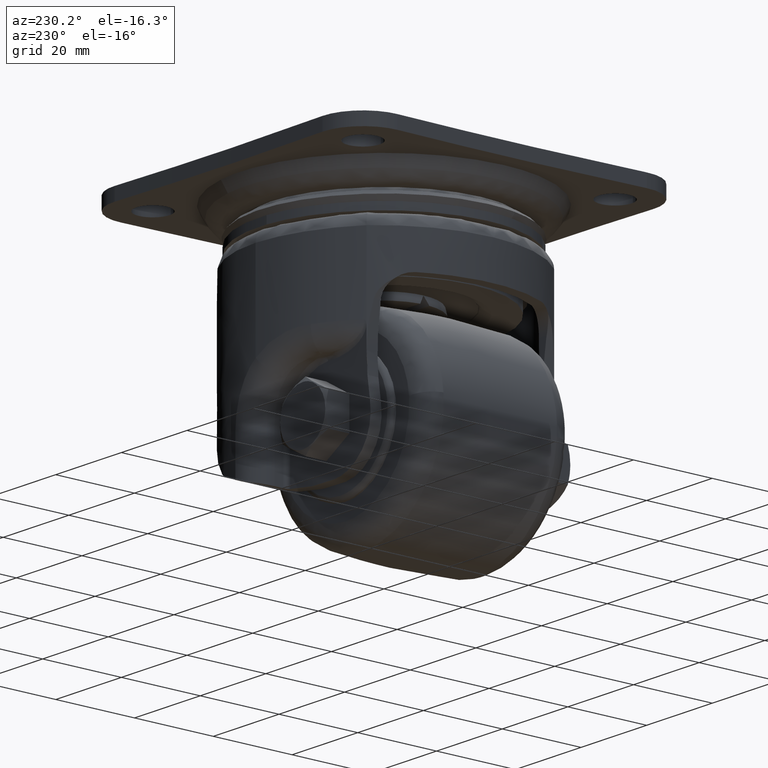
[diagram: clean part render]
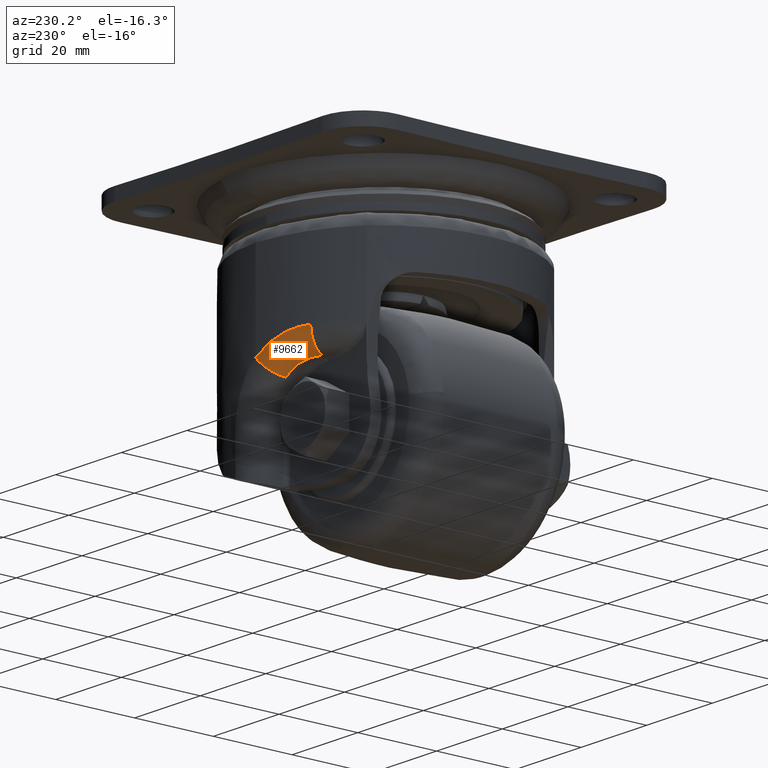
[diagram: same view with one face highlighted and labeled with its STEP entity id]
A machine part, auxiliary view. The second image highlights one B-rep face of the part: STEP entity #9662.
In plain terms, the highlighted face is a freeform B-spline surface patch.
Its self-contained STEP definition (entity closure, byte-faithful):
#4740=CARTESIAN_POINT('',(-11.510754999222820,25.162320823011601,-40.899967999999902));
#4741=VERTEX_POINT('',#4740);
#4747=CARTESIAN_POINT('',(-3.247391428680905,27.599947263824649,-44.012100038500300));
#4748=VERTEX_POINT('',#4747);
#4749=CARTESIAN_POINT('',(-11.510754999222820,25.162320823011601,-40.899967999999902));
#4750=CARTESIAN_POINT('',(-11.339218368456820,25.261583527450561,-40.899830770662042));
#4751=CARTESIAN_POINT('',(-11.166363204090199,25.358212526002539,-40.903221392228403));
#4752=CARTESIAN_POINT('',(-10.817976270696660,25.546109037677720,-40.917407896185502));
#4753=CARTESIAN_POINT('',(-10.642145669944901,25.637522142958719,-40.928232779254493));
#4754=CARTESIAN_POINT('',(-10.113301292970570,25.902218206037990,-40.972167304384790));
#4755=CARTESIAN_POINT('',(-9.758903547376619,26.066036303851551,-41.016654620190941));
#4756=CARTESIAN_POINT('',(-9.046934681531182,26.368663971217650,-41.137861263366979));
#4757=CARTESIAN_POINT('',(-8.689361988619220,26.507472468855010,-41.214575100110451));
#4758=CARTESIAN_POINT('',(-8.151072428142191,26.697065582337121,-41.355710806285927));
#4759=CARTESIAN_POINT('',(-7.971321787161648,26.757159338112341,-41.407106103805262));
#4760=CARTESIAN_POINT('',(-7.611268644234131,26.871155527647929,-41.518994544163583));
#4761=CARTESIAN_POINT('',(-7.430834669434574,26.925094714304311,-41.579535100046662));
#4762=CARTESIAN_POINT('',(-7.070072986657436,27.026639896034560,-41.709974788172453));
#4763=CARTESIAN_POINT('',(-6.890528606158574,27.074030302051138,-41.779584695542383));
#4764=CARTESIAN_POINT('',(-6.622565883223585,27.140213898037750,-41.890723295833183));
#4765=CARTESIAN_POINT('',(-6.533424184193112,27.161467459658891,-41.928913218812752));
#4766=CARTESIAN_POINT('',(-6.356261357689603,27.202224149630080,-42.007266048133182));
#4767=CARTESIAN_POINT('',(-6.268164520414261,27.221746836314608,-42.047458975038012));
#4768=CARTESIAN_POINT('',(-5.830115597525293,27.315220921380821,-42.253492618056782));
#4769=CARTESIAN_POINT('',(-5.487455187697480,27.376767176571200,-42.434513705952007));
#4770=CARTESIAN_POINT('',(-4.818231638031721,27.476719407970592,-42.829024765446469));
#4771=CARTESIAN_POINT('',(-4.491666653730347,27.515119919854509,-43.042513011705751));
#4772=CARTESIAN_POINT('',(-4.014585165738514,27.557675813031640,-43.387682101362827));
#4773=CARTESIAN_POINT('',(-3.857688848990450,27.569352312423341,-43.506900201339967));
#4774=CARTESIAN_POINT('',(-3.548316228420679,27.588064593841761,-43.753830624530437));
#4775=CARTESIAN_POINT('',(-3.396292221988813,27.595069762946348,-43.881193541743642));
#4776=CARTESIAN_POINT('',(-3.247391428680903,27.599947263824649,-44.012100038500300));
#4777=B_SPLINE_CURVE_WITH_KNOTS('',3,(#4749,#4750,#4751,#4752,#4753,#4754,#4755,#4756,#4757,#4758,#4759,#4760,#4761,#4762,#4763,#4764,#4765,#4766,#4767,#4768,#4769,#4770,#4771,#4772,#4773,#4774,#4775,#4776),.UNSPECIFIED.,.F.,.U.,(4,2,2,2,2,2,2,2,2,2,2,2,2,4),(0.0,0.062500000000000,0.125000000000000,0.249999999999998,0.374999999999997,0.437499999999996,0.499999999999996,0.562499999999995,0.593749999999995,0.624999999999995,0.749999999999997,0.874999999999998,0.937499999999999,1.0),.UNSPECIFIED.);
#4778=EDGE_CURVE('',#4741,#4748,#4777,.T.);
#4825=CARTESIAN_POINT('',(-11.511042599236021,25.163855013634951,-40.899967999999902));
#4826=VERTEX_POINT('',#4825);
#4840=CARTESIAN_POINT('',(-11.511042599236051,25.163855013635050,-40.899967999999902));
#4841=CARTESIAN_POINT('',(-11.510754999222851,25.162320823012060,-40.899967999999902));
#4842=QUASI_UNIFORM_CURVE('',1,(#4840,#4841),.UNSPECIFIED.,.F.,.U.);
#4843=EDGE_CURVE('',#4826,#4741,#4842,.T.);
#9400=CARTESIAN_POINT('',(-13.422198919354100,29.784188848539600,-35.899967999999987));
#9401=VERTEX_POINT('',#9400);
#9415=CARTESIAN_POINT('',(-13.422198919354109,29.784188848539610,-35.899967999999987));
#9416=CARTESIAN_POINT('',(-13.422041875557090,29.783844143030340,-35.946716645684617));
#9417=CARTESIAN_POINT('',(-13.421727787797250,29.783154731647880,-36.040213986408631));
#9418=CARTESIAN_POINT('',(-13.419351678648059,29.777512197902489,-36.180349739169401));
#9419=CARTESIAN_POINT('',(-13.415583016583080,29.768500702579161,-36.320265061759379));
#9420=CARTESIAN_POINT('',(-13.410287982131440,29.755796387906958,-36.459849881214353));
#9421=CARTESIAN_POINT('',(-13.403507411630740,29.739497900354461,-36.598994384163881));
#9422=CARTESIAN_POINT('',(-13.395236833623031,29.719594282624389,-36.737589102447572));
#9423=CARTESIAN_POINT('',(-13.385485402341670,29.696107538182709,-36.875525002060527));
#9424=CARTESIAN_POINT('',(-13.374260102547730,29.669054421605370,-37.012693558399803));
#9425=CARTESIAN_POINT('',(-13.361569965935111,29.638456638755869,-37.148986880944094));
#9426=CARTESIAN_POINT('',(-13.347424964517970,29.604338168782711,-37.284297651460719));
#9427=CARTESIAN_POINT('',(-13.331836179014090,29.566725675694919,-37.418519755830147));
#9428=CARTESIAN_POINT('',(-13.314816184827460,29.525649426666391,-37.551546324627729));
#9429=CARTESIAN_POINT('',(-13.296377287225690,29.481139080762070,-37.683277441433013));
#9430=CARTESIAN_POINT('',(-13.253394335352009,29.377361129212112,-37.965612837699709));
#9431=CARTESIAN_POINT('',(-13.179704332584381,29.199374565983451,-38.358553663767871));
#9432=CARTESIAN_POINT('',(-13.068111925539890,28.929728793680098,-38.811050295320662));
#9433=CARTESIAN_POINT('',(-12.962468401391121,28.674391923411289,-39.159162504672103));
#9434=CARTESIAN_POINT('',(-12.846690643632410,28.394515003190541,-39.484049466852902));
#9435=CARTESIAN_POINT('',(-12.714266720752880,28.074353311044820,-39.795139253924702));
#9436=CARTESIAN_POINT('',(-12.557339355323800,27.694892048926128,-40.092767634162847));
#9437=CARTESIAN_POINT('',(-12.400393388465529,27.315337562640309,-40.332883773032599));
#9438=CARTESIAN_POINT('',(-12.286379947146020,27.039579956563891,-40.472303234366017));
#9439=CARTESIAN_POINT('',(-12.218035284506639,26.874269658467419,-40.544983710950689));
#9440=CARTESIAN_POINT('',(-12.193938946501859,26.815985318574558,-40.569619648252122));
#9441=CARTESIAN_POINT('',(-12.169717872019220,26.757398484063440,-40.593398981585160));
#9442=CARTESIAN_POINT('',(-12.145376211344709,26.698519184887019,-40.616317762450912));
#9443=CARTESIAN_POINT('',(-12.120918513560831,26.639358406881470,-40.638371677594087));
#9444=CARTESIAN_POINT('',(-12.096349247991300,26.579926945800040,-40.659556712423033));
#9445=CARTESIAN_POINT('',(-12.071672931384329,26.520235711853559,-40.679868974195578));
#9446=CARTESIAN_POINT('',(-12.046894092783781,26.460295645577069,-40.699304740307667));
#9447=CARTESIAN_POINT('',(-12.022017281887420,26.400117737830300,-40.717860446228862));
#9448=CARTESIAN_POINT('',(-11.997047065748159,26.339713021884538,-40.735532689571819));
#9449=CARTESIAN_POINT('',(-11.971988028594890,26.279092572978989,-40.752318229801311));
#9450=CARTESIAN_POINT('',(-11.946844770813200,26.218267505865612,-40.768213989073928));
#9451=CARTESIAN_POINT('',(-11.921621908147600,26.157248972883799,-40.783217052736653));
#9452=CARTESIAN_POINT('',(-11.896324070840629,26.096048161884180,-40.797324669880382));
#9453=CARTESIAN_POINT('',(-11.870955902785621,26.034676294184440,-40.810534253834767));
#9454=CARTESIAN_POINT('',(-11.845522060672581,25.973144622508809,-40.822843382662519));
#9455=CARTESIAN_POINT('',(-11.820027213132819,25.911464428924258,-40.834249799534412));
#9456=CARTESIAN_POINT('',(-11.794476039881181,25.849647022770899,-40.844751413399273));
#9457=CARTESIAN_POINT('',(-11.768873230856631,25.787703738587240,-40.854346298412153));
#9458=CARTESIAN_POINT('',(-11.743223485359250,25.725645934031508,-40.863032697852923));
#9459=CARTESIAN_POINT('',(-11.717531511192369,25.663484987795929,-40.870809011141347));
#9460=CARTESIAN_POINT('',(-11.691802023777550,25.601232297527769,-40.877673843792628));
#9461=CARTESIAN_POINT('',(-11.666039745363550,25.538899277707308,-40.883625822332213));
#9462=CARTESIAN_POINT('',(-11.640249403878331,25.476497357670009,-40.888664286247597));
#9463=CARTESIAN_POINT('',(-11.614435733107889,25.414037979076930,-40.892786706650632));
#9464=CARTESIAN_POINT('',(-11.588603467917901,25.351532595431269,-40.895998320871968));
#9465=CARTESIAN_POINT('',(-11.562757357972160,25.288992663948498,-40.898276176449883));
#9466=CARTESIAN_POINT('',(-11.536902112416350,25.226429665953820,-40.899703321351318));
#9467=CARTESIAN_POINT('',(-11.519662436009110,25.184713228766650,-40.899879773793913));
#9468=CARTESIAN_POINT('',(-11.511042599235910,25.163855013634400,-40.899968000000563));
#9469=B_SPLINE_CURVE_WITH_KNOTS('',3,(#9415,#9416,#9417,#9418,#9419,#9420,#9421,#9422,#9423,#9424,#9425,#9426,#9427,#9428,#9429,#9430,#9431,#9432,#9433,#9434,#9435,#9436,#9437,#9438,#9439,#9440,#9441,#9442,#9443,#9444,#9445,#9446,#9447,#9448,#9449,#9450,#9451,#9452,#9453,#9454,#9455,#9456,#9457,#9458,#9459,#9460,#9461,#9462,#9463,#9464,#9465,#9466,#9467,#9468),.UNSPECIFIED.,.F.,.U.,(4,1,1,1,1,1,1,1,1,1,1,1,1,1,1,1,1,1,1,1,1,1,1,1,1,1,1,1,1,1,1,1,1,1,1,1,1,1,1,1,1,1,1,1,1,1,1,1,1,1,1,4),(0.0,0.017860120891677,0.035720260639113,0.053580419311034,0.071440596976176,0.089300793703294,0.107161009561149,0.125021244618520,0.142881498944199,0.160741772606990,0.178602065675712,0.196462378219197,0.214322710306290,0.232183062005853,0.250043433386756,0.330410062968523,0.398859729536142,0.455386266995601,0.499984583980836,0.568439198517771,0.632917413312304,0.693418535071666,0.749941914652937,0.758564621148359,0.767187327585339,0.775810033860101,0.784432739868871,0.793055445507865,0.801678150673300,0.810300855261380,0.818923559168312,0.827546262290294,0.836168964523522,0.844791665764184,0.853414365908467,0.862037064852552,0.870659762492616,0.879282458724834,0.887905153445372,0.896527846550398,0.905150537936072,0.913773227498553,0.922395915133994,0.931018600738547,0.939641284208358,0.948263965439572,0.956886644328330,0.965509320770769,0.974131994663025,0.982754665901230,0.991377334381513,1.0),.UNSPECIFIED.);
#9470=EDGE_CURVE('',#9401,#4826,#9469,.T.);
#9475=CARTESIAN_POINT('',(-13.563166757306441,29.725647511433277,-35.829944351763366));
#9476=CARTESIAN_POINT('',(-13.544792044135264,29.733294552713062,-35.829878504535621));
#9477=CARTESIAN_POINT('',(-13.526417240131225,29.740941631794950,-35.829812656982369));
#9478=CARTESIAN_POINT('',(-12.924774945759268,29.991328313636910,-35.827656624568903));
#9479=CARTESIAN_POINT('',(-12.326676278336846,30.222578591895868,-35.847559353478886));
#9480=CARTESIAN_POINT('',(-11.127814474857360,30.650883911188462,-35.934581094806312));
#9481=CARTESIAN_POINT('',(-10.529999850596170,30.847150764618547,-36.001152665910027));
#9482=CARTESIAN_POINT('',(-8.742482556644747,31.385367120671763,-36.271073058774022));
#9483=CARTESIAN_POINT('',(-7.558639370365708,31.676805351978086,-36.544048222379658));
#9484=CARTESIAN_POINT('',(-5.800812017291255,32.022769145001554,-37.106063713931796));
#9485=CARTESIAN_POINT('',(-5.215009177170507,32.123183029064577,-37.320373021722240));
#9486=CARTESIAN_POINT('',(-4.075946356565575,32.291731394922600,-37.792942808087908));
#9487=CARTESIAN_POINT('',(-3.520349402038646,32.360474127377984,-38.051668867919688));
#9488=CARTESIAN_POINT('',(-2.437333367782541,32.471134888868292,-38.613828979792800));
#9489=CARTESIAN_POINT('',(-1.909916662913418,32.513046532660418,-38.917259383320342));
#9490=CARTESIAN_POINT('',(-0.884274876607211,32.573870382399917,-39.569718418628675));
#9491=CARTESIAN_POINT('',(-0.384128645954216,32.592732707323250,-39.920532243272625));
#9492=CARTESIAN_POINT('',(0.105265938108534,32.602168088189899,-40.298215541948657));
#9493=CARTESIAN_POINT('',(0.120204280984700,32.602456094962221,-40.309743995262103));
#9494=CARTESIAN_POINT('',(0.135142571480172,32.602744100724706,-40.321272408151529));
#9495=CARTESIAN_POINT('',(-13.562940493738969,29.725741950634568,-35.865073042364479));
#9496=CARTESIAN_POINT('',(-13.544592187784350,29.733377909930795,-35.865001246135883));
#9497=CARTESIAN_POINT('',(-13.526243836345651,29.741013888155997,-35.864929449729310));
#9498=CARTESIAN_POINT('',(-12.925492650978324,29.991026701871146,-35.862578733017777));
#9499=CARTESIAN_POINT('',(-12.328297344422047,30.221950512976615,-35.882274668634309));
#9500=CARTESIAN_POINT('',(-11.131291241318870,30.649690323617069,-35.968843057249160));
#9501=CARTESIAN_POINT('',(-10.534421891768242,30.845720381930651,-36.035170466637780));
#9502=CARTESIAN_POINT('',(-8.749799808645580,31.383358064199751,-36.304291235808456));
#9503=CARTESIAN_POINT('',(-7.567934527261012,31.674594099592330,-36.576657431477123));
#9504=CARTESIAN_POINT('',(-5.813153188862443,32.020520277143959,-37.137578493065035));
#9505=CARTESIAN_POINT('',(-5.228380439999575,32.120967067759054,-37.351491495656553));
#9506=CARTESIAN_POINT('',(-4.091351770721714,32.289665759113966,-37.823214620179435));
#9507=CARTESIAN_POINT('',(-3.536760336632954,32.358525061377698,-38.081490199282996));
#9508=CARTESIAN_POINT('',(-2.455731927254707,32.469492996294129,-38.642683597046357));
#9509=CARTESIAN_POINT('',(-1.929295207845301,32.511594639230594,-38.945598843746978));
#9510=CARTESIAN_POINT('',(-0.905584531825767,32.572862872411960,-39.596949805689235));
#9511=CARTESIAN_POINT('',(-0.406391546677186,32.591980283635095,-39.947168907074065));
#9512=CARTESIAN_POINT('',(0.082054803469932,32.601700899553421,-40.324203873108758));
#9513=CARTESIAN_POINT('',(0.096964642314025,32.601997621633060,-40.335712876258171));
#9514=CARTESIAN_POINT('',(0.111874454942519,32.602294343190984,-40.347221859171604));
#9515=CARTESIAN_POINT('',(-13.530413686537797,29.739318178247981,-40.915042682480156));
#9516=CARTESIAN_POINT('',(-13.515866707395565,29.745358895834102,-40.913215227838229));
#9517=CARTESIAN_POINT('',(-13.501324844032730,29.751397489063120,-40.911388415862724));
#9518=CARTESIAN_POINT('',(-13.028031831222128,29.947935161793630,-40.851931293886338));
#9519=CARTESIAN_POINT('',(-12.558742664582308,30.132664919410409,-40.817287490413030));
#9520=CARTESIAN_POINT('',(-11.621350331173025,30.481451114750733,-40.798153946325705));
#9521=CARTESIAN_POINT('',(-11.155546431137362,30.644807329891631,-40.813346423202482));
#9522=CARTESIAN_POINT('',(-9.769068806703848,31.103503143659122,-40.931473410120823));
#9523=CARTESIAN_POINT('',(-8.859170080541077,31.367418252002054,-41.106561619780528));
#9524=CARTESIAN_POINT('',(-7.527110427889254,31.708194715353045,-41.514390169346647));
#9525=CARTESIAN_POINT('',(-7.086468336628069,31.813034231953882,-41.675754694876908));
#9526=CARTESIAN_POINT('',(-6.237116473155443,32.001950780386487,-42.039666395276093));
#9527=CARTESIAN_POINT('',(-5.826599031113080,32.086569389393297,-42.242498707621422));
#9528=CARTESIAN_POINT('',(-5.034580063055960,32.239355870045259,-42.687113055022749));
#9529=CARTESIAN_POINT('',(-4.653079748903745,32.307521273901393,-42.928900194973458));
#9530=CARTESIAN_POINT('',(-3.920211971359670,32.430332774010303,-43.449310897759730));
#9531=CARTESIAN_POINT('',(-3.567543409343022,32.485142204768543,-43.729359756280573));
#9532=CARTESIAN_POINT('',(-3.227289141541981,32.535091149130814,-44.029508577283814));
#9533=CARTESIAN_POINT('',(-3.216859166287882,32.536622257783861,-44.038709181278712));
#9534=CARTESIAN_POINT('',(-3.206426609062973,32.538153745467319,-44.047912062909980));
#9535=CARTESIAN_POINT('',(-11.582481797244142,25.080104028204907,-40.900177481469690));
#9536=CARTESIAN_POINT('',(-11.571170671750073,25.086704166274384,-40.900134323822456));
#9537=CARTESIAN_POINT('',(-11.559859518226205,25.093304320699463,-40.900091166068258));
#9538=CARTESIAN_POINT('',(-11.189516230855324,25.309402783317530,-40.898678119686274));
#9539=CARTESIAN_POINT('',(-10.821419136136710,25.508988445908169,-40.912943951537500));
#9540=CARTESIAN_POINT('',(-10.083620802984669,25.878711956142642,-40.975034876047182));
#9541=CARTESIAN_POINT('',(-9.715745732134957,26.048161222421285,-41.022470108008271));
#9542=CARTESIAN_POINT('',(-8.615853129168556,26.512923040372304,-41.214668863327361));
#9543=CARTESIAN_POINT('',(-7.887464801796737,26.764725125919860,-41.408922079361467));
#9544=CARTESIAN_POINT('',(-6.805949297034912,27.063890042098890,-41.808736471117491));
#9545=CARTESIAN_POINT('',(-6.445528198458399,27.150775849246532,-41.961181332949785));
#9546=CARTESIAN_POINT('',(-5.744695638900835,27.296735456071872,-42.297313918438604));
#9547=CARTESIAN_POINT('',(-5.402842300657033,27.356334547566057,-42.481334765404817));
#9548=CARTESIAN_POINT('',(-4.736446036074608,27.452424595661736,-42.881165410394111));
#9549=CARTESIAN_POINT('',(-4.411901421629906,27.488909589786360,-43.096974642352919));
#9550=CARTESIAN_POINT('',(-3.780737167529267,27.542066923895366,-43.561023066841877));
#9551=CARTESIAN_POINT('',(-3.472943378378646,27.558696887638831,-43.810524847478547));
#9552=CARTESIAN_POINT('',(-3.171728125384427,27.567210395536883,-44.079155916596534));
#9553=CARTESIAN_POINT('',(-3.162533521055832,27.567470270612244,-44.087355887767835));
#9554=CARTESIAN_POINT('',(-3.153338932888323,27.567730145230836,-44.095555844526302));
#9555=CARTESIAN_POINT('',(-11.568936156110988,25.047704516093681,-40.900074110977464));
#9556=CARTESIAN_POINT('',(-11.557645120165590,25.054302765899205,-40.900043344852598));
#9557=CARTESIAN_POINT('',(-11.546354028423641,25.060901048311088,-40.900012578575712));
#9558=CARTESIAN_POINT('',(-11.176652226657184,25.276947197964844,-40.899005204951784));
#9559=CARTESIAN_POINT('',(-10.809202092971876,25.476474262952550,-40.913616617909327));
#9560=CARTESIAN_POINT('',(-10.072714951310628,25.846068510310410,-40.976289347102131));
#9561=CARTESIAN_POINT('',(-9.705498678033935,26.015446915934881,-41.023958440187513));
#9562=CARTESIAN_POINT('',(-8.607577095053838,26.479978814689957,-41.216701211029118));
#9563=CARTESIAN_POINT('',(-7.880472207322933,26.731603183267001,-41.411097928484629));
#9564=CARTESIAN_POINT('',(-6.800758413924935,27.030460560593951,-41.810855161630563));
#9565=CARTESIAN_POINT('',(-6.440917399643201,27.117236468348150,-41.963234636723868));
#9566=CARTESIAN_POINT('',(-5.741161527475292,27.262966057864993,-42.299163058426267));
#9567=CARTESIAN_POINT('',(-5.399806329966063,27.322445164084787,-42.483045886949967));
#9568=CARTESIAN_POINT('',(-4.734319747773434,27.418284259282490,-42.882549389462888));
#9569=CARTESIAN_POINT('',(-4.410186124943501,27.454638895780519,-43.098170013205369));
#9570=CARTESIAN_POINT('',(-3.779751589293735,27.507524710541681,-43.561812464492711));
#9571=CARTESIAN_POINT('',(-3.472277369151759,27.524013410228633,-43.811096271177732));
#9572=CARTESIAN_POINT('',(-3.171338562806978,27.532378411446562,-44.079504015799984));
#9573=CARTESIAN_POINT('',(-3.162152668006474,27.532633745818796,-44.087696928291713));
#9574=CARTESIAN_POINT('',(-3.152966805404895,27.532889079295984,-44.095889812065110));
#9582=(BOUNDED_SURFACE()B_SPLINE_SURFACE(3,2,((#9475,#9495,#9515,#9535,#9555),(#9476,#9496,#9516,#9536,#9556),(#9477,#9497,#9517,#9537,#9557),(#9478,#9498,#9518,#9538,#9558),(#9479,#9499,#9519,#9539,#9559),(#9480,#9500,#9520,#9540,#9560),(#9481,#9501,#9521,#9541,#9561),(#9482,#9502,#9522,#9542,#9562),(#9483,#9503,#9523,#9543,#9563),(#9484,#9504,#9524,#9544,#9564),(#9485,#9505,#9525,#9545,#9565),(#9486,#9506,#9526,#9546,#9566),(#9487,#9507,#9527,#9547,#9567),(#9488,#9508,#9528,#9548,#9568),(#9489,#9509,#9529,#9549,#9569),(#9490,#9510,#9530,#9550,#9570),(#9491,#9511,#9531,#9551,#9571),(#9492,#9512,#9532,#9552,#9572),(#9493,#9513,#9533,#9553,#9573),(#9494,#9514,#9534,#9554,#9574)),.UNSPECIFIED.,.F.,.F.,.U.)B_SPLINE_SURFACE_WITH_KNOTS((4,2,2,2,2,2,2,2,2,4),(3,1,1,3),(0.0,0.060360829755115,1.976216974839394,3.892073119923676,7.723785410092237,9.639641555176517,11.555497700260799,13.471353845345080,15.387209990429360,15.447534759881471),(0.0,0.083091847982825,8.384617415594867,8.467680616216768),.UNSPECIFIED.)GEOMETRIC_REPRESENTATION_ITEM()RATIONAL_B_SPLINE_SURFACE(((1.005884082215436,1.002942041107718,0.706067080350242,1.002941026787836,1.005882053575671),(1.005881596003080,1.002940798001540,0.706191276381139,1.002939784110240,1.005879568220480),(1.005879109790724,1.002939554895362,0.706315472412036,1.002938541432645,1.005877082865289),(1.005797711057793,1.002898855528897,0.710381657477116,1.002897856097994,1.005795712195989),(1.005727262804149,1.002863631402075,0.713900823273863,1.002862644115303,1.005725288230606),(1.005606903892586,1.002803451946293,0.719913221637182,1.002802485407436,1.005604970814873),(1.005557190182147,1.002778595091074,0.722396615906801,1.002777637122051,1.005555274244101),(1.005438038918036,1.002719019459018,0.728348687556723,1.002718082029731,1.005436164059462),(1.005398538003415,1.002699269001707,0.730321912732429,1.002698338381734,1.005396676763469),(1.005395048327785,1.002697524163893,0.730496235678457,1.002696594145483,1.005393188290966),(1.005403351072751,1.002701675536375,0.730081481094905,1.002700744086708,1.005401488173415),(1.005436977123265,1.002718488561633,0.728401728358273,1.002717551315382,1.005435102630763),(1.005462202431765,1.002731101215883,0.727141625541031,1.002730159621200,1.005460319242399),(1.005527157690988,1.002763578845494,0.723896856299049,1.002762626053583,1.005525252107166),(1.005566893043034,1.002783446521517,0.721911920057088,1.002782486879879,1.005564973759757),(1.005658642307299,1.002829321153650,0.717328685470283,1.002828345695934,1.005656691391867),(1.005710915180007,1.002855457590004,0.714717451036257,1.002854473121296,1.005708946242593),(1.005768680807504,1.002884340403752,0.711831832018089,1.002883345977192,1.005766691954383),(1.005770444157274,1.002885222078637,0.711743745800518,1.002884227348104,1.005768454696207),(1.005772207507043,1.002886103753522,0.711655659582947,1.002885108719016,1.005770217438032)))REPRESENTATION_ITEM('')SURFACE());
#9583=ORIENTED_EDGE('',*,*,#4778,.F.);
#9584=ORIENTED_EDGE('',*,*,#4843,.F.);
#9585=ORIENTED_EDGE('',*,*,#9470,.F.);
#9586=CARTESIAN_POINT('',(-0.025172324484897,32.599445112581598,-40.285822358458447));
#9587=VERTEX_POINT('',#9586);
#9588=CARTESIAN_POINT('',(-0.025172324484904,32.599445112581598,-40.285822358458461));
#9589=CARTESIAN_POINT('',(-0.270440527822984,32.593955621604451,-40.098187774420872));
#9590=CARTESIAN_POINT('',(-0.520107539302008,32.585941621384450,-39.916377673965037));
#9591=CARTESIAN_POINT('',(-1.027170319711301,32.564390696138133,-39.564777985052103));
#9592=CARTESIAN_POINT('',(-1.283809273571564,32.550888310667062,-39.395502391384589));
#9593=CARTESIAN_POINT('',(-2.062627293414907,32.501629339172787,-38.906554188398133));
#9594=CARTESIAN_POINT('',(-2.593685976835112,32.457124590348897,-38.605718025371360));
#9595=CARTESIAN_POINT('',(-3.677846754093252,32.341709669494243,-38.051757459433723));
#9596=CARTESIAN_POINT('',(-4.230953660068257,32.270805261307302,-37.798641134221413));
#9597=CARTESIAN_POINT('',(-4.935488314257712,32.163641366149761,-37.511274178388291));
#9598=CARTESIAN_POINT('',(-5.077054179041323,32.141281224025228,-37.455255007654458));
#9599=CARTESIAN_POINT('',(-5.361493337641864,32.094652127926210,-37.346116017127322));
#9600=CARTESIAN_POINT('',(-5.504538508926293,32.070351842806083,-37.292936445607069));
#9601=CARTESIAN_POINT('',(-5.933772410405665,31.994836323597600,-37.138392790609672));
#9602=CARTESIAN_POINT('',(-6.220347815612371,31.940968239993222,-37.041891779067363));
#9603=CARTESIAN_POINT('',(-7.081114877881334,31.768609476049630,-36.771160092557949));
#9604=CARTESIAN_POINT('',(-7.656340561903710,31.639368449191370,-36.615662671451943));
#9605=CARTESIAN_POINT('',(-8.808593023170984,31.351171726984791,-36.351370301489929));
#9606=CARTESIAN_POINT('',(-9.385622229405579,31.192218143824359,-36.242584315676062));
#9607=CARTESIAN_POINT('',(-10.540717312169409,30.843398128455341,-36.069577187644313));
#9608=CARTESIAN_POINT('',(-11.118784792527160,30.653533941340601,-36.005360874570833));
#9609=CARTESIAN_POINT('',(-11.986187889329949,30.344487414717751,-35.941539895495879));
#9610=CARTESIAN_POINT('',(-12.275481667834161,30.237372617920730,-35.925704517623679));
#9611=CARTESIAN_POINT('',(-12.850721685112740,30.016206387747729,-35.904854044383072));
#9612=CARTESIAN_POINT('',(-13.137090293089210,29.902009682935891,-35.899801098757187));
#9613=CARTESIAN_POINT('',(-13.422198919354100,29.784188848539600,-35.899967999999987));
#9614=B_SPLINE_CURVE_WITH_KNOTS('',3,(#9588,#9589,#9590,#9591,#9592,#9593,#9594,#9595,#9596,#9597,#9598,#9599,#9600,#9601,#9602,#9603,#9604,#9605,#9606,#9607,#9608,#9609,#9610,#9611,#9612,#9613),.UNSPECIFIED.,.F.,.U.,(4,2,2,2,2,2,2,2,2,2,2,2,4),(0.0,0.062500000000000,0.124999999999999,0.249999999999999,0.374999999999998,0.406249999999998,0.437499999999998,0.499999999999998,0.624999999999998,0.749999999999999,0.875000000000000,0.937500000000000,1.0),.UNSPECIFIED.);
#9615=EDGE_CURVE('',#9587,#9401,#9614,.T.);
#9616=ORIENTED_EDGE('',*,*,#9615,.F.);
#9617=CARTESIAN_POINT('',(-0.025172324484900,32.599445112581598,-40.285822358458447));
#9618=CARTESIAN_POINT('',(-0.241057868711738,32.594613252067269,-40.531439639360492));
#9619=CARTESIAN_POINT('',(-0.452867717858418,32.558086871422951,-40.772809508047430));
#9620=CARTESIAN_POINT('',(-0.764719690977419,32.457706522305358,-41.128754773952323));
#9621=CARTESIAN_POINT('',(-0.867686082816437,32.416592466649433,-41.246377504056632));
#9622=CARTESIAN_POINT('',(-1.020626998542976,32.343189534572417,-41.421239436380873));
#9623=CARTESIAN_POINT('',(-1.071399433144413,32.316738237723150,-41.479314631172223));
#9624=CARTESIAN_POINT('',(-1.172245138904617,32.259936388078962,-41.594717575374972));
#9625=CARTESIAN_POINT('',(-1.221990260452238,32.229774516502147,-41.651669759047422));
#9626=CARTESIAN_POINT('',(-1.467397230305580,32.070342340994017,-41.932761636680027));
#9627=CARTESIAN_POINT('',(-1.653195816739280,31.915444353163661,-42.145996667205999));
#9628=CARTESIAN_POINT('',(-1.872439266703173,31.688031059203521,-42.398162181051312));
#9629=CARTESIAN_POINT('',(-1.915631970673397,31.640843925824289,-42.447870014894640));
#9630=CARTESIAN_POINT('',(-2.000685867384305,31.543009918731009,-42.545813525363897));
#9631=CARTESIAN_POINT('',(-2.042612003906185,31.492279927117089,-42.594124090854912));
#9632=CARTESIAN_POINT('',(-2.165918625437385,31.335334948327692,-42.736302451633769));
#9633=CARTESIAN_POINT('',(-2.244047096950494,31.225413148435500,-42.826516599874807));
#9634=CARTESIAN_POINT('',(-2.466608952915052,30.880296996758862,-43.083897913944107));
#9635=CARTESIAN_POINT('',(-2.599327529954576,30.629893099208651,-43.237925941972520));
#9636=CARTESIAN_POINT('',(-2.745296980460068,30.291013587312051,-43.408108033697530));
#9637=CARTESIAN_POINT('',(-2.773542786673127,30.221782430188352,-43.441083781277868));
#9638=CARTESIAN_POINT('',(-2.827709534558764,30.081354214770901,-43.504414714166337));
#9639=CARTESIAN_POINT('',(-2.853544792364396,30.010398156718811,-43.534669488676009));
#9640=CARTESIAN_POINT('',(-2.927380509544139,29.795348280322610,-43.621285657001167));
#9641=CARTESIAN_POINT('',(-3.016058576985073,29.502807499903330,-43.725731642920223));
#9642=CARTESIAN_POINT('',(-3.085552638094113,29.198862439442490,-43.808494011954153));
#9643=CARTESIAN_POINT('',(-3.130408099858052,28.966584730092499,-43.862353912404693));
#9644=CARTESIAN_POINT('',(-3.144146974187520,28.888437760284749,-43.878936194261570));
#9645=CARTESIAN_POINT('',(-3.169160680155983,28.730678999949969,-43.909315572901569));
#9646=CARTESIAN_POINT('',(-3.180454237459896,28.650910109023890,-43.923135887496763));
#9647=CARTESIAN_POINT('',(-3.210410523750057,28.410542828663878,-43.960145420227477));
#9648=CARTESIAN_POINT('',(-3.225118314296665,28.249402612822621,-43.978842137539338));
#9649=CARTESIAN_POINT('',(-3.239365228584158,28.006362817107352,-43.998013301502702));
#9650=CARTESIAN_POINT('',(-3.244531465651947,27.884509951414120,-44.005376402578477));
#9651=CARTESIAN_POINT('',(-3.246744997605038,27.762154761989599,-44.009386607370807));
#9652=CARTESIAN_POINT('',(-3.247356564418598,27.700892922089810,-44.010829390995447));
#9653=CARTESIAN_POINT('',(-3.247476711001554,27.680542920964609,-44.011214221812793));
#9654=CARTESIAN_POINT('',(-3.247554700574877,27.640246677398540,-44.011794323359872));
#9655=CARTESIAN_POINT('',(-3.247513277414293,27.620097498993239,-44.011992914887998));
#9656=CARTESIAN_POINT('',(-3.247391428681985,27.599947263865499,-44.012100038499348));
#9657=B_SPLINE_CURVE_WITH_KNOTS('',3,(#9617,#9618,#9619,#9620,#9621,#9622,#9623,#9624,#9625,#9626,#9627,#9628,#9629,#9630,#9631,#9632,#9633,#9634,#9635,#9636,#9637,#9638,#9639,#9640,#9641,#9642,#9643,#9644,#9645,#9646,#9647,#9648,#9649,#9650,#9651,#9652,#9653,#9654,#9655,#9656),.UNSPECIFIED.,.F.,.U.,(4,2,2,2,2,2,2,2,2,2,2,2,1,2,2,2,2,1,2,2,4),(0.0,0.124999999999997,0.187499999999995,0.218749999999996,0.249999999999996,0.374999999999996,0.406249999999997,0.437499999999997,0.500000000000000,0.625000000000003,0.656250000000003,0.687500000000003,0.750000000000003,0.812500000000002,0.843750000000002,0.875000000000002,0.937499999999999,0.968749999999999,0.984374999999999,0.992187499999999,1.0),.UNSPECIFIED.);
#9658=EDGE_CURVE('',#9587,#4748,#9657,.T.);
#9659=ORIENTED_EDGE('',*,*,#9658,.T.);
#9660=EDGE_LOOP('',(#9583,#9584,#9585,#9616,#9659));
#9661=FACE_OUTER_BOUND('',#9660,.T.);
#9662=ADVANCED_FACE('',(#9661),#9582,.T.);